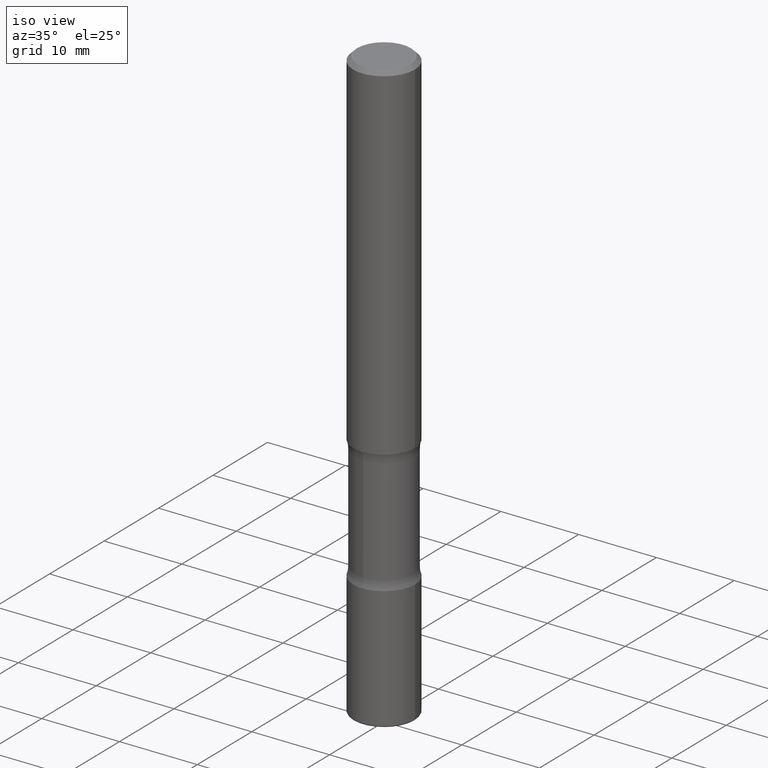
[diagram: clean part render]
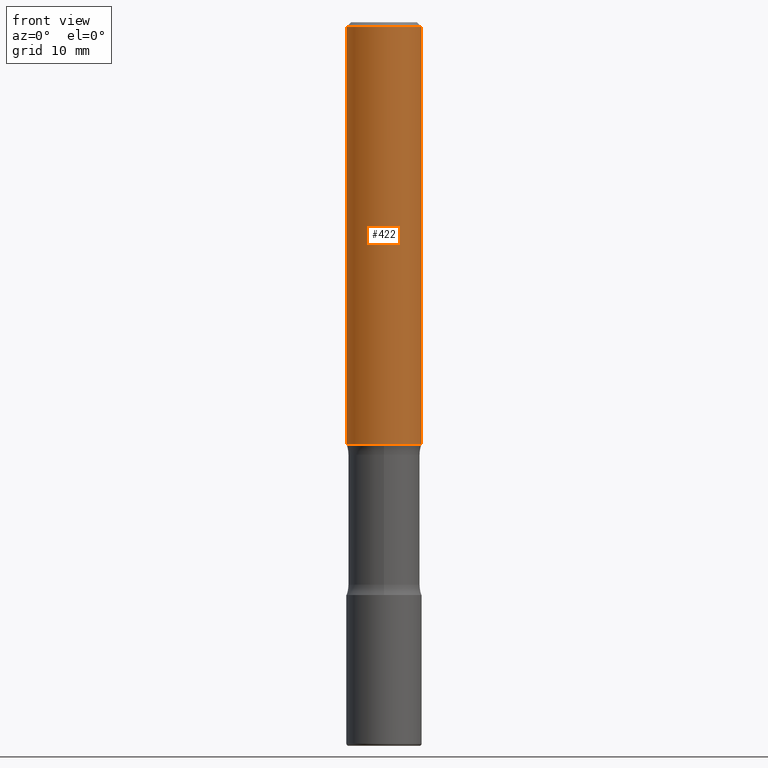
[diagram: tour spotlight — one face highlighted and labeled with its STEP entity id]
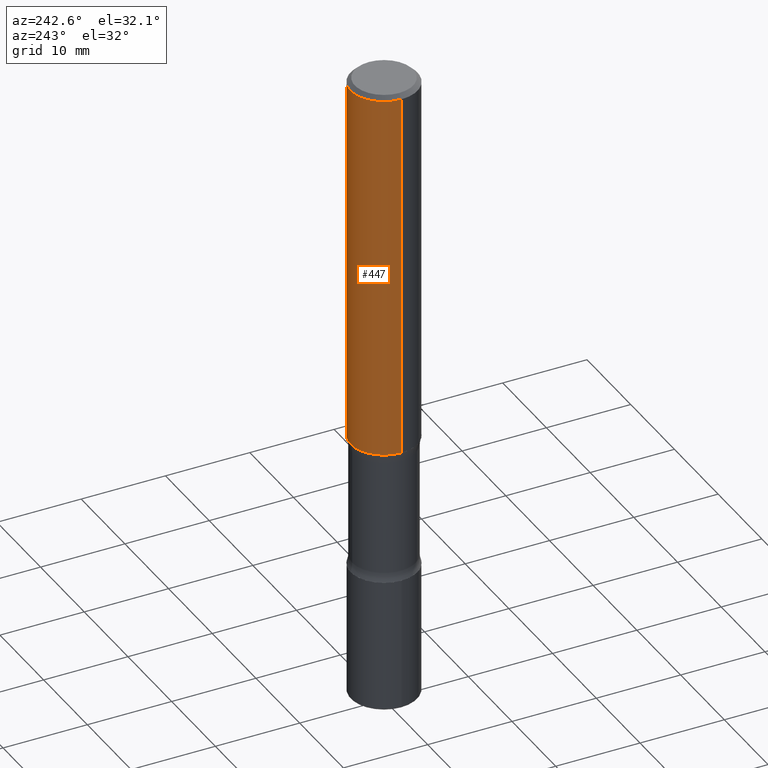
[diagram: tour spotlight — one face highlighted and labeled with its STEP entity id]
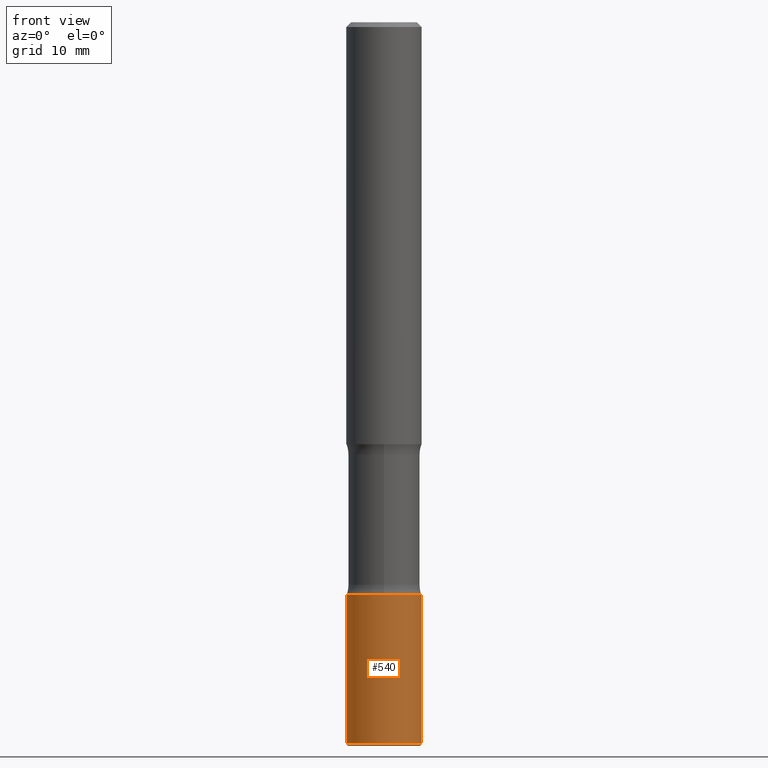
[diagram: tour spotlight — one face highlighted and labeled with its STEP entity id]
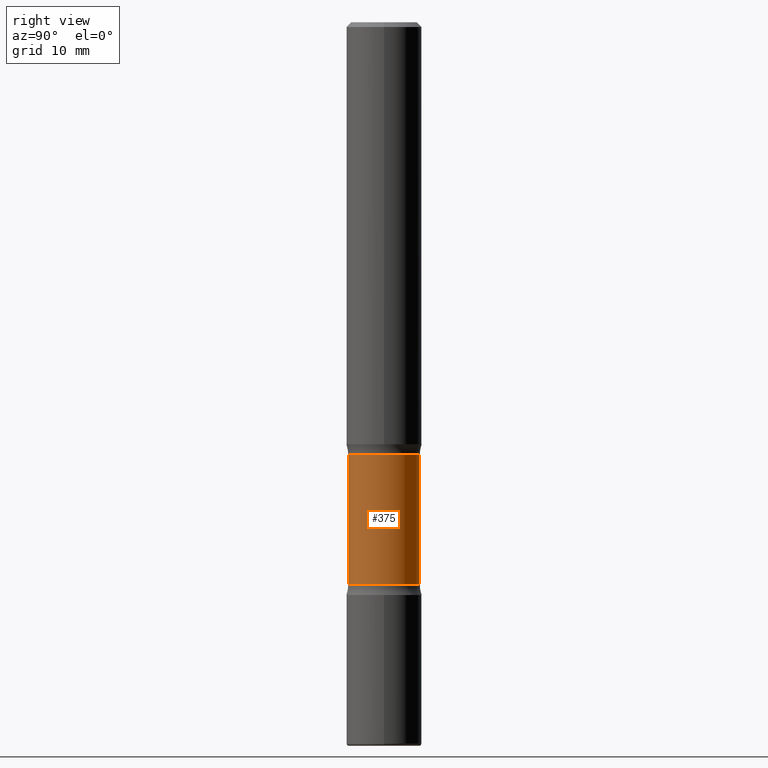
[diagram: tour spotlight — one face highlighted and labeled with its STEP entity id]
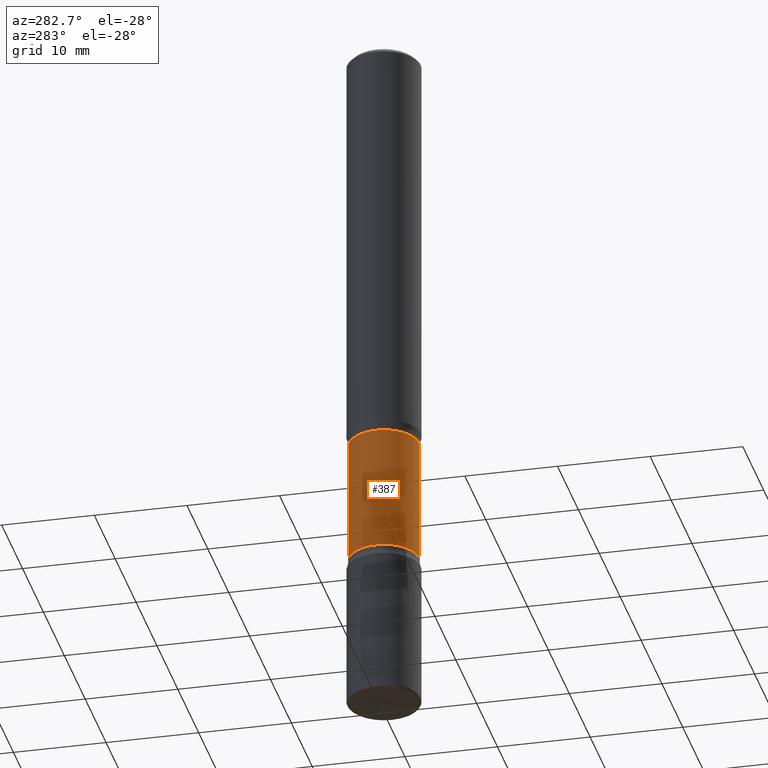
[diagram: tour spotlight — one face highlighted and labeled with its STEP entity id]
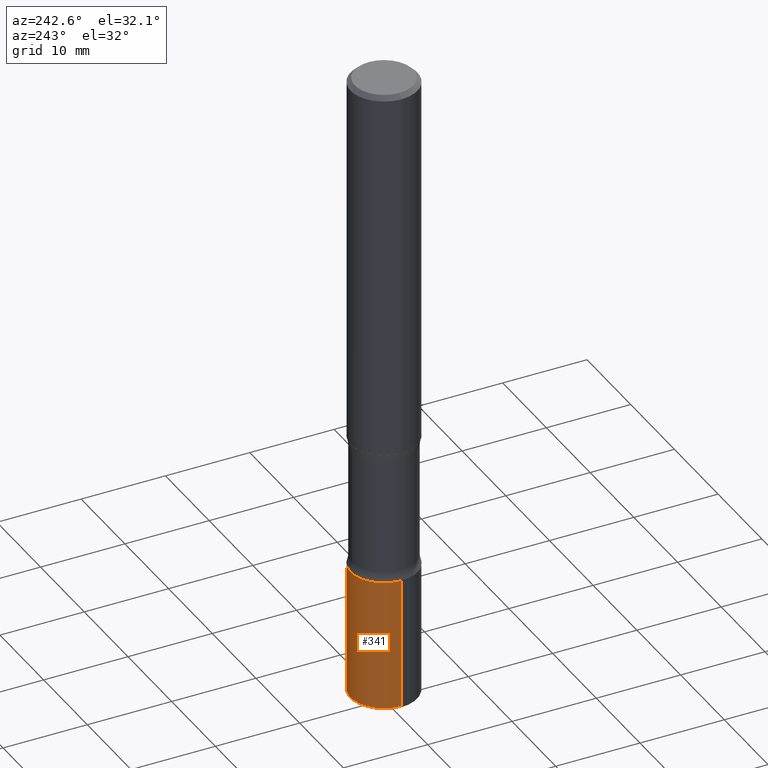
[diagram: tour spotlight — one face highlighted and labeled with its STEP entity id]
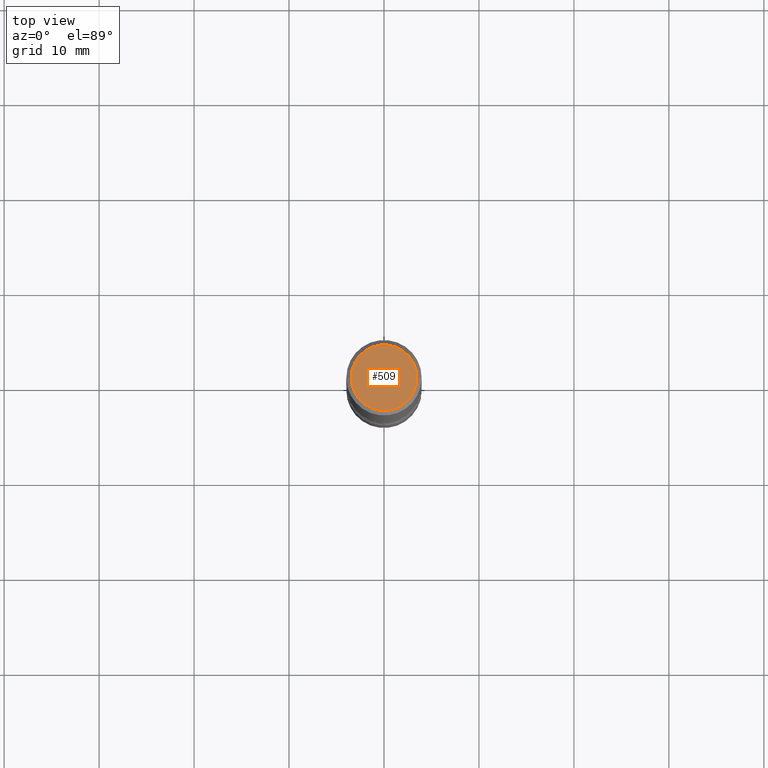
[diagram: tour spotlight — one face highlighted and labeled with its STEP entity id]
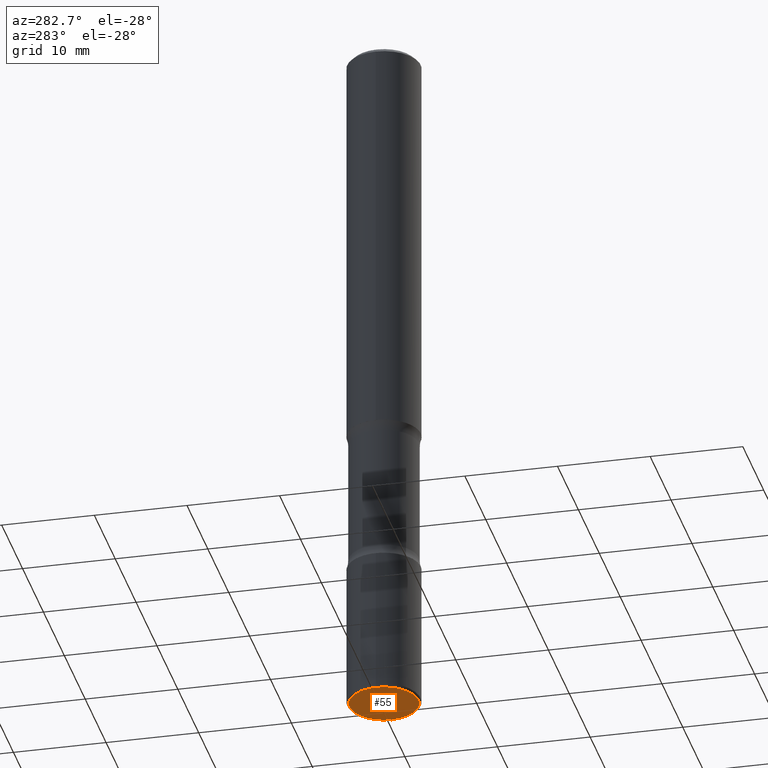
[diagram: tour spotlight — one face highlighted and labeled with its STEP entity id]
A machine part: a face-by-face anatomy tour. The part has 20 B-rep faces; the first image is the clean iso view, then the 8 largest visible faces are spotlighted one at a time (largest first), each with its STEP entity span.

Face 1 — front view, entity #422. In plain terms, the highlighted cylindrical surface (partial cylindrical patch) has radius 3.9687 mm, axis along (-0, 0, 1).
Definition (entity closure, byte-faithful):
#11 = DIRECTION ( 'NONE',  ( 1.000000000000000000, -6.982962677686265133E-15, 0.000000000000000000 ) ) ;
#12 = CARTESIAN_POINT ( 'NONE',  ( 0.1562500000000000833, -7.201180261363985422E-15, -1.750000000000000444 ) ) ;
#19 = EDGE_CURVE ( 'NONE', #59, #92, #279, .T. ) ;
#31 = CARTESIAN_POINT ( 'NONE',  ( -0.1562499999999999722, 1.110223024625156343E-15, -7.685836078523288357E-30 ) ) ;
#49 = CIRCLE ( 'NONE', #270, 0.1562499999999998612 ) ;
#56 = CARTESIAN_POINT ( 'NONE',  ( 4.279570410823989605E-29, -6.110092342975506249E-15, -1.750000000000000444 ) ) ;
#59 = VERTEX_POINT ( 'NONE', #60 ) ;
#60 = CARTESIAN_POINT ( 'NONE',  ( -0.1562500000000000833, -1.979737960251025472E-15, -1.750000000000000444 ) ) ;
#92 = VERTEX_POINT ( 'NONE', #12 ) ;
#116 = AXIS2_PLACEMENT_3D ( 'NONE', #332, #329, #502 ) ;
#119 = DIRECTION ( 'NONE',  ( -2.445468806185136877E-29, 3.491481338843145188E-15, 1.000000000000000000 ) ) ;
#120 = CYLINDRICAL_SURFACE ( 'NONE', #116, 0.1562499999999999722 ) ;
#149 = EDGE_LOOP ( 'NONE', ( #255, #448, #394, #441 ) ) ;
#172 = VECTOR ( 'NONE', #264, 39.37007874015748143 ) ;
#175 = EDGE_CURVE ( 'NONE', #355, #488, #49, .T. ) ;
#192 = CARTESIAN_POINT ( 'NONE',  ( -0.1562499999999998612, 1.021258291611615284E-15, -0.02000000000000000042 ) ) ;
#200 = AXIS2_PLACEMENT_3D ( 'NONE', #56, #399, #11 ) ;
#224 = EDGE_CURVE ( 'NONE', #92, #488, #539, .T. ) ;
#245 = LINE ( 'NONE', #31, #282 ) ;
#255 = ORIENTED_EDGE ( 'NONE', *, *, #472, .F. ) ;
#264 = DIRECTION ( 'NONE',  ( -2.445468806185136877E-29, 3.491481338843145188E-15, 1.000000000000000000 ) ) ;
#270 = AXIS2_PLACEMENT_3D ( 'NONE', #272, #454, #459 ) ;
#272 = CARTESIAN_POINT ( 'NONE',  ( 4.890937612370273159E-31, -6.982962677686291609E-17, -0.02000000000000000042 ) ) ;
#279 = CIRCLE ( 'NONE', #200, 0.1562500000000000833 ) ;
#282 = VECTOR ( 'NONE', #119, 39.37007874015748143 ) ;
#291 = CARTESIAN_POINT ( 'NONE',  ( 0.1562499999999998612, -1.141782438928663922E-15, -0.02000000000000000042 ) ) ;
#329 = DIRECTION ( 'NONE',  ( -2.445468806185136597E-29, 3.491481338843145583E-15, 1.000000000000000000 ) ) ;
#332 = CARTESIAN_POINT ( 'NONE',  ( 0.000000000000000000, 0.000000000000000000, 0.000000000000000000 ) ) ;
#355 = VERTEX_POINT ( 'NONE', #192 ) ;
#394 = ORIENTED_EDGE ( 'NONE', *, *, #224, .T. ) ;
#399 = DIRECTION ( 'NONE',  ( -2.445468806185136597E-29, 3.491481338843145583E-15, 1.000000000000000000 ) ) ;
#422 = ADVANCED_FACE ( 'NONE', ( #547 ), #120, .T. ) ;
#441 = ORIENTED_EDGE ( 'NONE', *, *, #175, .F. ) ;
#448 = ORIENTED_EDGE ( 'NONE', *, *, #19, .T. ) ;
#454 = DIRECTION ( 'NONE',  ( -2.445468806185136597E-29, 3.491481338843145583E-15, 1.000000000000000000 ) ) ;
#459 = DIRECTION ( 'NONE',  ( 1.000000000000000000, -6.982962677686266711E-15, 0.000000000000000000 ) ) ;
#472 = EDGE_CURVE ( 'NONE', #59, #355, #245, .T. ) ;
#484 = CARTESIAN_POINT ( 'NONE',  ( 0.1562499999999999722, -1.091087918388478976E-15, 7.619026212181148976E-30 ) ) ;
#488 = VERTEX_POINT ( 'NONE', #291 ) ;
#502 = DIRECTION ( 'NONE',  ( 1.000000000000000000, -6.982962677686266711E-15, 4.876176775795936353E-29 ) ) ;
#539 = LINE ( 'NONE', #484, #172 ) ;
#547 = FACE_OUTER_BOUND ( 'NONE', #149, .T. ) ;

Face 2 — auxiliary view, entity #447. In plain terms, the highlighted cylindrical surface (partial cylindrical patch) has radius 3.9687 mm, axis along (-0, 0, 1).
Definition (entity closure, byte-faithful):
#12 = CARTESIAN_POINT ( 'NONE',  ( 0.1562500000000000833, -7.201180261363985422E-15, -1.750000000000000444 ) ) ;
#13 = CIRCLE ( 'NONE', #218, 0.1562499999999998612 ) ;
#31 = CARTESIAN_POINT ( 'NONE',  ( -0.1562499999999999722, 1.110223024625156343E-15, -7.685836078523288357E-30 ) ) ;
#53 = ORIENTED_EDGE ( 'NONE', *, *, #224, .F. ) ;
#59 = VERTEX_POINT ( 'NONE', #60 ) ;
#60 = CARTESIAN_POINT ( 'NONE',  ( -0.1562500000000000833, -1.979737960251025472E-15, -1.750000000000000444 ) ) ;
#74 = DIRECTION ( 'NONE',  ( 1.000000000000000000, -6.982962677686265133E-15, 0.000000000000000000 ) ) ;
#82 = EDGE_CURVE ( 'NONE', #92, #59, #368, .T. ) ;
#92 = VERTEX_POINT ( 'NONE', #12 ) ;
#119 = DIRECTION ( 'NONE',  ( -2.445468806185136877E-29, 3.491481338843145188E-15, 1.000000000000000000 ) ) ;
#121 = CARTESIAN_POINT ( 'NONE',  ( 0.000000000000000000, 0.000000000000000000, 0.000000000000000000 ) ) ;
#164 = ORIENTED_EDGE ( 'NONE', *, *, #299, .F. ) ;
#172 = VECTOR ( 'NONE', #264, 39.37007874015748143 ) ;
#186 = CARTESIAN_POINT ( 'NONE',  ( 4.890937612370273159E-31, -6.982962677686291609E-17, -0.02000000000000000042 ) ) ;
#189 = DIRECTION ( 'NONE',  ( -2.445468806185136597E-29, 3.491481338843145583E-15, 1.000000000000000000 ) ) ;
#192 = CARTESIAN_POINT ( 'NONE',  ( -0.1562499999999998612, 1.021258291611615284E-15, -0.02000000000000000042 ) ) ;
#198 = DIRECTION ( 'NONE',  ( -2.445468806185136597E-29, 3.491481338843145583E-15, 1.000000000000000000 ) ) ;
#201 = AXIS2_PLACEMENT_3D ( 'NONE', #121, #198, #207 ) ;
#207 = DIRECTION ( 'NONE',  ( 1.000000000000000000, -6.982962677686266711E-15, 4.876176775795936353E-29 ) ) ;
#218 = AXIS2_PLACEMENT_3D ( 'NONE', #186, #189, #443 ) ;
#224 = EDGE_CURVE ( 'NONE', #92, #488, #539, .T. ) ;
#245 = LINE ( 'NONE', #31, #282 ) ;
#264 = DIRECTION ( 'NONE',  ( -2.445468806185136877E-29, 3.491481338843145188E-15, 1.000000000000000000 ) ) ;
#274 = DIRECTION ( 'NONE',  ( -2.445468806185136597E-29, 3.491481338843145583E-15, 1.000000000000000000 ) ) ;
#282 = VECTOR ( 'NONE', #119, 39.37007874015748143 ) ;
#285 = FACE_OUTER_BOUND ( 'NONE', #292, .T. ) ;
#291 = CARTESIAN_POINT ( 'NONE',  ( 0.1562499999999998612, -1.141782438928663922E-15, -0.02000000000000000042 ) ) ;
#292 = EDGE_LOOP ( 'NONE', ( #479, #403, #164, #53 ) ) ;
#299 = EDGE_CURVE ( 'NONE', #488, #355, #13, .T. ) ;
#355 = VERTEX_POINT ( 'NONE', #192 ) ;
#368 = CIRCLE ( 'NONE', #490, 0.1562500000000000833 ) ;
#403 = ORIENTED_EDGE ( 'NONE', *, *, #472, .T. ) ;
#443 = DIRECTION ( 'NONE',  ( 1.000000000000000000, -6.982962677686266711E-15, 0.000000000000000000 ) ) ;
#447 = ADVANCED_FACE ( 'NONE', ( #285 ), #465, .T. ) ;
#465 = CYLINDRICAL_SURFACE ( 'NONE', #201, 0.1562499999999999722 ) ;
#472 = EDGE_CURVE ( 'NONE', #59, #355, #245, .T. ) ;
#479 = ORIENTED_EDGE ( 'NONE', *, *, #82, .T. ) ;
#484 = CARTESIAN_POINT ( 'NONE',  ( 0.1562499999999999722, -1.091087918388478976E-15, 7.619026212181148976E-30 ) ) ;
#488 = VERTEX_POINT ( 'NONE', #291 ) ;
#490 = AXIS2_PLACEMENT_3D ( 'NONE', #543, #274, #74 ) ;
#539 = LINE ( 'NONE', #484, #172 ) ;
#543 = CARTESIAN_POINT ( 'NONE',  ( 4.279570410823989605E-29, -6.110092342975506249E-15, -1.750000000000000444 ) ) ;

Face 3 — front view, entity #540. In plain terms, the highlighted cylindrical surface (partial cylindrical patch) has radius 3.9688 mm, axis along (-0, 0, 1).
Definition (entity closure, byte-faithful):
#2 = EDGE_CURVE ( 'NONE', #271, #45, #130, .T. ) ;
#4 = VECTOR ( 'NONE', #364, 39.37007874015748143 ) ;
#40 = DIRECTION ( 'NONE',  ( 1.000000000000000000, -6.982962677686266711E-15, 4.876176775795936353E-29 ) ) ;
#45 = VERTEX_POINT ( 'NONE', #153 ) ;
#81 = DIRECTION ( 'NONE',  ( -2.445468806185136597E-29, 3.491481338843145583E-15, 1.000000000000000000 ) ) ;
#122 = EDGE_CURVE ( 'NONE', #271, #261, #529, .T. ) ;
#127 = EDGE_CURVE ( 'NONE', #45, #300, #281, .T. ) ;
#130 = CIRCLE ( 'NONE', #449, 0.1562500000000001388 ) ;
#135 = ORIENTED_EDGE ( 'NONE', *, *, #127, .T. ) ;
#140 = AXIS2_PLACEMENT_3D ( 'NONE', #199, #81, #418 ) ;
#153 = CARTESIAN_POINT ( 'NONE',  ( 0.1562500000000001665, -1.153061712152948940E-14, -2.990000000000000657 ) ) ;
#187 = CARTESIAN_POINT ( 'NONE',  ( 7.311951730493559366E-29, -1.043952920314100786E-14, -2.990000000000000657 ) ) ;
#199 = CARTESIAN_POINT ( 'NONE',  ( 5.807988414689700538E-29, -8.292268179752471696E-15, -2.375000000000000444 ) ) ;
#206 = ORIENTED_EDGE ( 'NONE', *, *, #405, .F. ) ;
#216 = FACE_OUTER_BOUND ( 'NONE', #528, .T. ) ;
#235 = CARTESIAN_POINT ( 'NONE',  ( -0.1562500000000001388, 1.110223024625157526E-15, -7.685836078523296765E-30 ) ) ;
#237 = CARTESIAN_POINT ( 'NONE',  ( -0.1562500000000001665, -9.329306178515849742E-15, -2.990000000000000657 ) ) ;
#261 = VERTEX_POINT ( 'NONE', #458 ) ;
#271 = VERTEX_POINT ( 'NONE', #237 ) ;
#281 = LINE ( 'NONE', #541, #4 ) ;
#300 = VERTEX_POINT ( 'NONE', #398 ) ;
#364 = DIRECTION ( 'NONE',  ( -2.445468806185136877E-29, 3.491481338843145188E-15, 1.000000000000000000 ) ) ;
#398 = CARTESIAN_POINT ( 'NONE',  ( 0.1562500000000001110, -9.383356098140953236E-15, -2.375000000000000444 ) ) ;
#402 = AXIS2_PLACEMENT_3D ( 'NONE', #433, #512, #40 ) ;
#405 = EDGE_CURVE ( 'NONE', #261, #300, #429, .T. ) ;
#407 = DIRECTION ( 'NONE',  ( 1.000000000000000000, -6.982962677686269077E-15, 0.000000000000000000 ) ) ;
#418 = DIRECTION ( 'NONE',  ( 1.000000000000000000, -6.982962677686270655E-15, 0.000000000000000000 ) ) ;
#429 = CIRCLE ( 'NONE', #140, 0.1562500000000001110 ) ;
#433 = CARTESIAN_POINT ( 'NONE',  ( 0.000000000000000000, 0.000000000000000000, 0.000000000000000000 ) ) ;
#444 = DIRECTION ( 'NONE',  ( -2.445468806185136597E-29, 3.491481338843145583E-15, 1.000000000000000000 ) ) ;
#449 = AXIS2_PLACEMENT_3D ( 'NONE', #187, #444, #407 ) ;
#458 = CARTESIAN_POINT ( 'NONE',  ( -0.1562500000000001110, -8.255675666821583237E-15, -2.375000000000000444 ) ) ;
#476 = ORIENTED_EDGE ( 'NONE', *, *, #122, .F. ) ;
#505 = ORIENTED_EDGE ( 'NONE', *, *, #2, .T. ) ;
#507 = VECTOR ( 'NONE', #533, 39.37007874015748143 ) ;
#512 = DIRECTION ( 'NONE',  ( -2.445468806185136597E-29, 3.491481338843145583E-15, 1.000000000000000000 ) ) ;
#519 = CYLINDRICAL_SURFACE ( 'NONE', #402, 0.1562500000000001388 ) ;
#528 = EDGE_LOOP ( 'NONE', ( #476, #505, #135, #206 ) ) ;
#529 = LINE ( 'NONE', #235, #507 ) ;
#533 = DIRECTION ( 'NONE',  ( -2.445468806185136877E-29, 3.491481338843145188E-15, 1.000000000000000000 ) ) ;
#540 = ADVANCED_FACE ( 'NONE', ( #216 ), #519, .T. ) ;
#541 = CARTESIAN_POINT ( 'NONE',  ( 0.1562500000000001388, -1.091087918388480160E-15, 7.619026212181157383E-30 ) ) ;

Face 4 — right view, entity #375. In plain terms, the highlighted cylindrical surface (edge-blend (fillet) strip) has radius 3.7703 mm, axis along (0, -0, -1).
Definition (entity closure, byte-faithful):
#16 = DIRECTION ( 'NONE',  ( 2.523926373086038410E-29, -3.379125637513666367E-15, -1.000000000000000000 ) ) ;
#25 = CARTESIAN_POINT ( 'NONE',  ( 1.036533522469098602E-15, 0.1484374999999936995, -1.793498159084610633 ) ) ;
#38 = VECTOR ( 'NONE', #16, 39.37007874015748143 ) ;
#39 = VERTEX_POINT ( 'NONE', #25 ) ;
#69 = DIRECTION ( 'NONE',  ( 6.982962677686265133E-15, 1.000000000000000000, -3.680805717779217644E-15 ) ) ;
#77 = DIRECTION ( 'NONE',  ( 6.982962677686265133E-15, 1.000000000000000000, -3.680805717779216855E-15 ) ) ;
#131 = AXIS2_PLACEMENT_3D ( 'NONE', #494, #317, #69 ) ;
#133 = ORIENTED_EDGE ( 'NONE', *, *, #250, .F. ) ;
#139 = DIRECTION ( 'NONE',  ( 2.523926373086038410E-29, -3.379125637513666367E-15, -1.000000000000000000 ) ) ;
#144 = CARTESIAN_POINT ( 'NONE',  ( -1.018355171544137761E-15, -0.1484375000000104083, -2.999999999999999112 ) ) ;
#156 = FACE_OUTER_BOUND ( 'NONE', #211, .T. ) ;
#166 = AXIS2_PLACEMENT_3D ( 'NONE', #380, #196, #552 ) ;
#180 = CARTESIAN_POINT ( 'NONE',  ( 1.036533522469128973E-15, 0.1484374999999896194, -3.000000000000000444 ) ) ;
#196 = DIRECTION ( 'NONE',  ( 2.523926373086038410E-29, -3.379125637513666367E-15, -1.000000000000000000 ) ) ;
#211 = EDGE_LOOP ( 'NONE', ( #520, #386, #391, #133 ) ) ;
#226 = CARTESIAN_POINT ( 'NONE',  ( -1.045153991847964360E-15, -0.1484375000000063560, -1.793498159084609522 ) ) ;
#236 = EDGE_CURVE ( 'NONE', #378, #258, #555, .T. ) ;
#239 = CIRCLE ( 'NONE', #305, 0.1484375000000000278 ) ;
#249 = CYLINDRICAL_SURFACE ( 'NONE', #166, 0.1484375000000000000 ) ;
#250 = EDGE_CURVE ( 'NONE', #39, #378, #273, .T. ) ;
#251 = VERTEX_POINT ( 'NONE', #226 ) ;
#258 = VERTEX_POINT ( 'NONE', #451 ) ;
#260 = VECTOR ( 'NONE', #139, 39.37007874015748143 ) ;
#273 = LINE ( 'NONE', #180, #260 ) ;
#305 = AXIS2_PLACEMENT_3D ( 'NONE', #381, #498, #77 ) ;
#317 = DIRECTION ( 'NONE',  ( 2.523926373086038410E-29, -3.379125637513666367E-15, -1.000000000000000000 ) ) ;
#325 = EDGE_CURVE ( 'NONE', #251, #258, #359, .T. ) ;
#359 = LINE ( 'NONE', #144, #38 ) ;
#375 = ADVANCED_FACE ( 'NONE', ( #156 ), #249, .T. ) ;
#378 = VERTEX_POINT ( 'NONE', #550 ) ;
#380 = CARTESIAN_POINT ( 'NONE',  ( 7.385442397868472267E-29, -1.040422170319851125E-14, -2.999999999999999556 ) ) ;
#381 = CARTESIAN_POINT ( 'NONE',  ( 4.340320582405264943E-29, -6.327300400853882778E-15, -1.793498159084609966 ) ) ;
#386 = ORIENTED_EDGE ( 'NONE', *, *, #325, .T. ) ;
#391 = ORIENTED_EDGE ( 'NONE', *, *, #236, .F. ) ;
#396 = EDGE_CURVE ( 'NONE', #39, #251, #239, .T. ) ;
#451 = CARTESIAN_POINT ( 'NONE',  ( -1.045153991847949569E-15, -0.1484375000000081601, -2.331501840915390034 ) ) ;
#494 = CARTESIAN_POINT ( 'NONE',  ( 5.698202263795362163E-29, -8.145282435205020267E-15, -2.331501840915390478 ) ) ;
#498 = DIRECTION ( 'NONE',  ( 2.523926373086038410E-29, -3.379125637513666367E-15, -1.000000000000000000 ) ) ;
#520 = ORIENTED_EDGE ( 'NONE', *, *, #396, .T. ) ;
#550 = CARTESIAN_POINT ( 'NONE',  ( 1.036533522469112013E-15, 0.1484374999999918399, -2.331501840915391366 ) ) ;
#552 = DIRECTION ( 'NONE',  ( 6.982962677686266711E-15, 1.000000000000000000, -3.680805717779217644E-15 ) ) ;
#555 = CIRCLE ( 'NONE', #131, 0.1484375000000000000 ) ;

Face 5 — auxiliary view, entity #387. In plain terms, the highlighted cylindrical surface (edge-blend (fillet) strip) has radius 3.7703 mm, axis along (0, -0, -1).
Definition (entity closure, byte-faithful):
#9 = ORIENTED_EDGE ( 'NONE', *, *, #27, .T. ) ;
#16 = DIRECTION ( 'NONE',  ( 2.523926373086038410E-29, -3.379125637513666367E-15, -1.000000000000000000 ) ) ;
#23 = CIRCLE ( 'NONE', #280, 0.1484375000000000000 ) ;
#24 = CARTESIAN_POINT ( 'NONE',  ( 5.698202263795362163E-29, -8.145282435205020267E-15, -2.331501840915390478 ) ) ;
#25 = CARTESIAN_POINT ( 'NONE',  ( 1.036533522469098602E-15, 0.1484374999999936995, -1.793498159084610633 ) ) ;
#27 = EDGE_CURVE ( 'NONE', #251, #39, #267, .T. ) ;
#38 = VECTOR ( 'NONE', #16, 39.37007874015748143 ) ;
#39 = VERTEX_POINT ( 'NONE', #25 ) ;
#75 = CYLINDRICAL_SURFACE ( 'NONE', #246, 0.1484375000000000000 ) ;
#139 = DIRECTION ( 'NONE',  ( 2.523926373086038410E-29, -3.379125637513666367E-15, -1.000000000000000000 ) ) ;
#144 = CARTESIAN_POINT ( 'NONE',  ( -1.018355171544137761E-15, -0.1484375000000104083, -2.999999999999999112 ) ) ;
#162 = DIRECTION ( 'NONE',  ( 2.523926373086038410E-29, -3.379125637513666367E-15, -1.000000000000000000 ) ) ;
#165 = FACE_OUTER_BOUND ( 'NONE', #397, .T. ) ;
#176 = ORIENTED_EDGE ( 'NONE', *, *, #325, .F. ) ;
#180 = CARTESIAN_POINT ( 'NONE',  ( 1.036533522469128973E-15, 0.1484374999999896194, -3.000000000000000444 ) ) ;
#226 = CARTESIAN_POINT ( 'NONE',  ( -1.045153991847964360E-15, -0.1484375000000063560, -1.793498159084609522 ) ) ;
#246 = AXIS2_PLACEMENT_3D ( 'NONE', #372, #162, #326 ) ;
#250 = EDGE_CURVE ( 'NONE', #39, #378, #273, .T. ) ;
#251 = VERTEX_POINT ( 'NONE', #226 ) ;
#258 = VERTEX_POINT ( 'NONE', #451 ) ;
#260 = VECTOR ( 'NONE', #139, 39.37007874015748143 ) ;
#267 = CIRCLE ( 'NONE', #554, 0.1484375000000000278 ) ;
#273 = LINE ( 'NONE', #180, #260 ) ;
#275 = EDGE_CURVE ( 'NONE', #258, #378, #23, .T. ) ;
#280 = AXIS2_PLACEMENT_3D ( 'NONE', #24, #527, #412 ) ;
#295 = ORIENTED_EDGE ( 'NONE', *, *, #250, .T. ) ;
#325 = EDGE_CURVE ( 'NONE', #251, #258, #359, .T. ) ;
#326 = DIRECTION ( 'NONE',  ( 6.982962677686266711E-15, 1.000000000000000000, -3.680805717779217644E-15 ) ) ;
#359 = LINE ( 'NONE', #144, #38 ) ;
#360 = CARTESIAN_POINT ( 'NONE',  ( 4.340320582405264943E-29, -6.327300400853882778E-15, -1.793498159084609966 ) ) ;
#372 = CARTESIAN_POINT ( 'NONE',  ( 7.385442397868472267E-29, -1.040422170319851125E-14, -2.999999999999999556 ) ) ;
#378 = VERTEX_POINT ( 'NONE', #550 ) ;
#387 = ADVANCED_FACE ( 'NONE', ( #165 ), #75, .T. ) ;
#397 = EDGE_LOOP ( 'NONE', ( #176, #9, #295, #558 ) ) ;
#404 = DIRECTION ( 'NONE',  ( 2.523926373086038410E-29, -3.379125637513666367E-15, -1.000000000000000000 ) ) ;
#412 = DIRECTION ( 'NONE',  ( 6.982962677686265133E-15, 1.000000000000000000, -3.680805717779217644E-15 ) ) ;
#451 = CARTESIAN_POINT ( 'NONE',  ( -1.045153991847949569E-15, -0.1484375000000081601, -2.331501840915390034 ) ) ;
#497 = DIRECTION ( 'NONE',  ( 6.982962677686265133E-15, 1.000000000000000000, -3.680805717779216855E-15 ) ) ;
#527 = DIRECTION ( 'NONE',  ( 2.523926373086038410E-29, -3.379125637513666367E-15, -1.000000000000000000 ) ) ;
#550 = CARTESIAN_POINT ( 'NONE',  ( 1.036533522469112013E-15, 0.1484374999999918399, -2.331501840915391366 ) ) ;
#554 = AXIS2_PLACEMENT_3D ( 'NONE', #360, #404, #497 ) ;
#558 = ORIENTED_EDGE ( 'NONE', *, *, #275, .F. ) ;

Face 6 — auxiliary view, entity #341. In plain terms, the highlighted cylindrical surface (partial cylindrical patch) has radius 3.9688 mm, axis along (-0, 0, 1).
Definition (entity closure, byte-faithful):
#4 = VECTOR ( 'NONE', #364, 39.37007874015748143 ) ;
#20 = DIRECTION ( 'NONE',  ( 1.000000000000000000, -6.982962677686266711E-15, 4.876176775795936353E-29 ) ) ;
#45 = VERTEX_POINT ( 'NONE', #153 ) ;
#50 = ORIENTED_EDGE ( 'NONE', *, *, #127, .F. ) ;
#67 = DIRECTION ( 'NONE',  ( -2.445468806185136597E-29, 3.491481338843145583E-15, 1.000000000000000000 ) ) ;
#68 = DIRECTION ( 'NONE',  ( 1.000000000000000000, -6.982962677686270655E-15, 0.000000000000000000 ) ) ;
#87 = EDGE_CURVE ( 'NONE', #300, #261, #437, .T. ) ;
#94 = ORIENTED_EDGE ( 'NONE', *, *, #158, .T. ) ;
#108 = DIRECTION ( 'NONE',  ( 1.000000000000000000, -6.982962677686269077E-15, 0.000000000000000000 ) ) ;
#110 = CYLINDRICAL_SURFACE ( 'NONE', #123, 0.1562500000000001388 ) ;
#122 = EDGE_CURVE ( 'NONE', #271, #261, #529, .T. ) ;
#123 = AXIS2_PLACEMENT_3D ( 'NONE', #234, #67, #20 ) ;
#127 = EDGE_CURVE ( 'NONE', #45, #300, #281, .T. ) ;
#146 = DIRECTION ( 'NONE',  ( -2.445468806185136597E-29, 3.491481338843145583E-15, 1.000000000000000000 ) ) ;
#153 = CARTESIAN_POINT ( 'NONE',  ( 0.1562500000000001665, -1.153061712152948940E-14, -2.990000000000000657 ) ) ;
#158 = EDGE_CURVE ( 'NONE', #45, #271, #182, .T. ) ;
#182 = CIRCLE ( 'NONE', #392, 0.1562500000000001388 ) ;
#184 = CARTESIAN_POINT ( 'NONE',  ( 5.807988414689700538E-29, -8.292268179752471696E-15, -2.375000000000000444 ) ) ;
#234 = CARTESIAN_POINT ( 'NONE',  ( 0.000000000000000000, 0.000000000000000000, 0.000000000000000000 ) ) ;
#235 = CARTESIAN_POINT ( 'NONE',  ( -0.1562500000000001388, 1.110223024625157526E-15, -7.685836078523296765E-30 ) ) ;
#237 = CARTESIAN_POINT ( 'NONE',  ( -0.1562500000000001665, -9.329306178515849742E-15, -2.990000000000000657 ) ) ;
#242 = DIRECTION ( 'NONE',  ( -2.445468806185136597E-29, 3.491481338843145583E-15, 1.000000000000000000 ) ) ;
#261 = VERTEX_POINT ( 'NONE', #458 ) ;
#266 = CARTESIAN_POINT ( 'NONE',  ( 7.311951730493559366E-29, -1.043952920314100786E-14, -2.990000000000000657 ) ) ;
#271 = VERTEX_POINT ( 'NONE', #237 ) ;
#281 = LINE ( 'NONE', #541, #4 ) ;
#287 = ORIENTED_EDGE ( 'NONE', *, *, #122, .T. ) ;
#300 = VERTEX_POINT ( 'NONE', #398 ) ;
#341 = ADVANCED_FACE ( 'NONE', ( #492 ), #110, .T. ) ;
#364 = DIRECTION ( 'NONE',  ( -2.445468806185136877E-29, 3.491481338843145188E-15, 1.000000000000000000 ) ) ;
#392 = AXIS2_PLACEMENT_3D ( 'NONE', #266, #146, #108 ) ;
#398 = CARTESIAN_POINT ( 'NONE',  ( 0.1562500000000001110, -9.383356098140953236E-15, -2.375000000000000444 ) ) ;
#428 = EDGE_LOOP ( 'NONE', ( #94, #287, #436, #50 ) ) ;
#436 = ORIENTED_EDGE ( 'NONE', *, *, #87, .F. ) ;
#437 = CIRCLE ( 'NONE', #536, 0.1562500000000001110 ) ;
#458 = CARTESIAN_POINT ( 'NONE',  ( -0.1562500000000001110, -8.255675666821583237E-15, -2.375000000000000444 ) ) ;
#492 = FACE_OUTER_BOUND ( 'NONE', #428, .T. ) ;
#507 = VECTOR ( 'NONE', #533, 39.37007874015748143 ) ;
#529 = LINE ( 'NONE', #235, #507 ) ;
#533 = DIRECTION ( 'NONE',  ( -2.445468806185136877E-29, 3.491481338843145188E-15, 1.000000000000000000 ) ) ;
#536 = AXIS2_PLACEMENT_3D ( 'NONE', #184, #242, #68 ) ;
#541 = CARTESIAN_POINT ( 'NONE',  ( 0.1562500000000001388, -1.091087918388480160E-15, 7.619026212181157383E-30 ) ) ;

Face 7 — top view, entity #509. In plain terms, the highlighted planar face has unit normal (0, -0, -1).
Definition (entity closure, byte-faithful):
#7 = VERTEX_POINT ( 'NONE', #17 ) ;
#17 = CARTESIAN_POINT ( 'NONE',  ( -0.1362499999999998712, 9.863434782231840290E-16, -6.775751096333132877E-30 ) ) ;
#33 = VERTEX_POINT ( 'NONE', #64 ) ;
#64 = CARTESIAN_POINT ( 'NONE',  ( 0.1362499999999998712, -1.038262645562517138E-15, 6.957025900226689470E-30 ) ) ;
#70 = CARTESIAN_POINT ( 'NONE',  ( 0.000000000000000000, 0.000000000000000000, 0.000000000000000000 ) ) ;
#83 = FACE_OUTER_BOUND ( 'NONE', #222, .T. ) ;
#85 = DIRECTION ( 'NONE',  ( 2.438088387897960049E-29, -3.491481338843145188E-15, -1.000000000000000000 ) ) ;
#100 = DIRECTION ( 'NONE',  ( -2.445468806185136597E-29, 3.491481338843145583E-15, 1.000000000000000000 ) ) ;
#125 = PLANE ( 'NONE',  #348 ) ;
#178 = ORIENTED_EDGE ( 'NONE', *, *, #382, .T. ) ;
#185 = EDGE_CURVE ( 'NONE', #7, #33, #420, .T. ) ;
#193 = AXIS2_PLACEMENT_3D ( 'NONE', #70, #100, #308 ) ;
#208 = DIRECTION ( 'NONE',  ( -1.000000000000000000, 6.982962677686265922E-15, -4.876176775795935793E-29 ) ) ;
#213 = ORIENTED_EDGE ( 'NONE', *, *, #185, .T. ) ;
#222 = EDGE_LOOP ( 'NONE', ( #213, #178 ) ) ;
#283 = DIRECTION ( 'NONE',  ( -2.445468806185136597E-29, 3.491481338843145583E-15, 1.000000000000000000 ) ) ;
#308 = DIRECTION ( 'NONE',  ( 1.000000000000000000, -6.982962677686266711E-15, 4.876176775795936353E-29 ) ) ;
#340 = CARTESIAN_POINT ( 'NONE',  ( 9.514286648347529716E-16, 0.1362499999999998712, -4.757143324173781621E-16 ) ) ;
#348 = AXIS2_PLACEMENT_3D ( 'NONE', #340, #85, #208 ) ;
#382 = EDGE_CURVE ( 'NONE', #33, #7, #480, .T. ) ;
#416 = CARTESIAN_POINT ( 'NONE',  ( 0.000000000000000000, 0.000000000000000000, 0.000000000000000000 ) ) ;
#420 = CIRCLE ( 'NONE', #193, 0.1362499999999998712 ) ;
#425 = DIRECTION ( 'NONE',  ( 1.000000000000000000, -6.982962677686266711E-15, 4.876176775795936353E-29 ) ) ;
#462 = AXIS2_PLACEMENT_3D ( 'NONE', #416, #283, #425 ) ;
#480 = CIRCLE ( 'NONE', #462, 0.1362499999999998712 ) ;
#509 = ADVANCED_FACE ( 'NONE', ( #83 ), #125, .F. ) ;

Face 8 — auxiliary view, entity #55. In plain terms, the highlighted planar face has unit normal (0, -0, -1).
Definition (entity closure, byte-faithful):
#15 = DIRECTION ( 'NONE',  ( 2.438088387897960049E-29, -3.491481338843145188E-15, -1.000000000000000000 ) ) ;
#51 = CIRCLE ( 'NONE', #142, 0.1462500000000001021 ) ;
#55 = ADVANCED_FACE ( 'NONE', ( #240 ), #229, .T. ) ;
#98 = VERTEX_POINT ( 'NONE', #157 ) ;
#124 = DIRECTION ( 'NONE',  ( 1.000000000000000000, -6.982962677686266711E-15, 0.000000000000000000 ) ) ;
#137 = EDGE_CURVE ( 'NONE', #363, #98, #318, .T. ) ;
#142 = AXIS2_PLACEMENT_3D ( 'NONE', #247, #469, #124 ) ;
#150 = DIRECTION ( 'NONE',  ( -2.445468806185136597E-29, 3.491481338843145583E-15, 1.000000000000000000 ) ) ;
#155 = CARTESIAN_POINT ( 'NONE',  ( 7.336406418555412032E-29, -1.047444401652943951E-14, -3.000000000000000888 ) ) ;
#157 = CARTESIAN_POINT ( 'NONE',  ( -0.1462500000000001021, -9.382290721998072185E-15, -3.000000000000000888 ) ) ;
#229 = PLANE ( 'NONE',  #335 ) ;
#240 = FACE_OUTER_BOUND ( 'NONE', #485, .T. ) ;
#247 = CARTESIAN_POINT ( 'NONE',  ( 7.336406418555412032E-29, -1.047444401652943951E-14, -3.000000000000000888 ) ) ;
#248 = ORIENTED_EDGE ( 'NONE', *, *, #137, .F. ) ;
#318 = CIRCLE ( 'NONE', #327, 0.1462500000000001021 ) ;
#322 = DIRECTION ( 'NONE',  ( 1.000000000000000000, -6.982962677686266711E-15, 0.000000000000000000 ) ) ;
#327 = AXIS2_PLACEMENT_3D ( 'NONE', #155, #150, #322 ) ;
#335 = AXIS2_PLACEMENT_3D ( 'NONE', #535, #15, #373 ) ;
#363 = VERTEX_POINT ( 'NONE', #419 ) ;
#373 = DIRECTION ( 'NONE',  ( -1.000000000000000000, 6.982962677686265922E-15, -4.876176775795935793E-29 ) ) ;
#419 = CARTESIAN_POINT ( 'NONE',  ( 0.1462500000000001021, -1.149570230814105617E-14, -3.000000000000000888 ) ) ;
#469 = DIRECTION ( 'NONE',  ( -2.445468806185136597E-29, 3.491481338843145583E-15, 1.000000000000000000 ) ) ;
#483 = EDGE_CURVE ( 'NONE', #98, #363, #51, .T. ) ;
#485 = EDGE_LOOP ( 'NONE', ( #248, #551 ) ) ;
#535 = CARTESIAN_POINT ( 'NONE',  ( -8.316018263183792163E-29, -3.288960704146697258E-14, -3.000000000000000444 ) ) ;
#551 = ORIENTED_EDGE ( 'NONE', *, *, #483, .F. ) ;